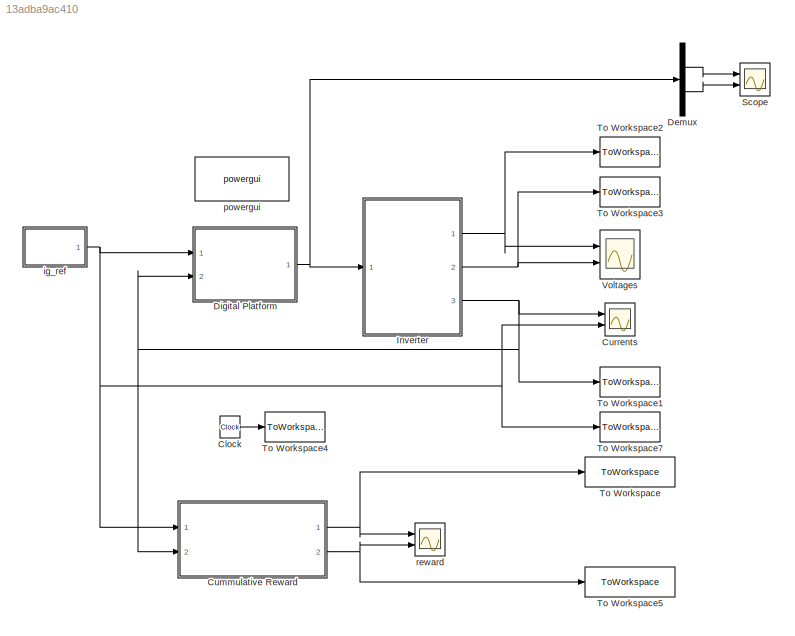
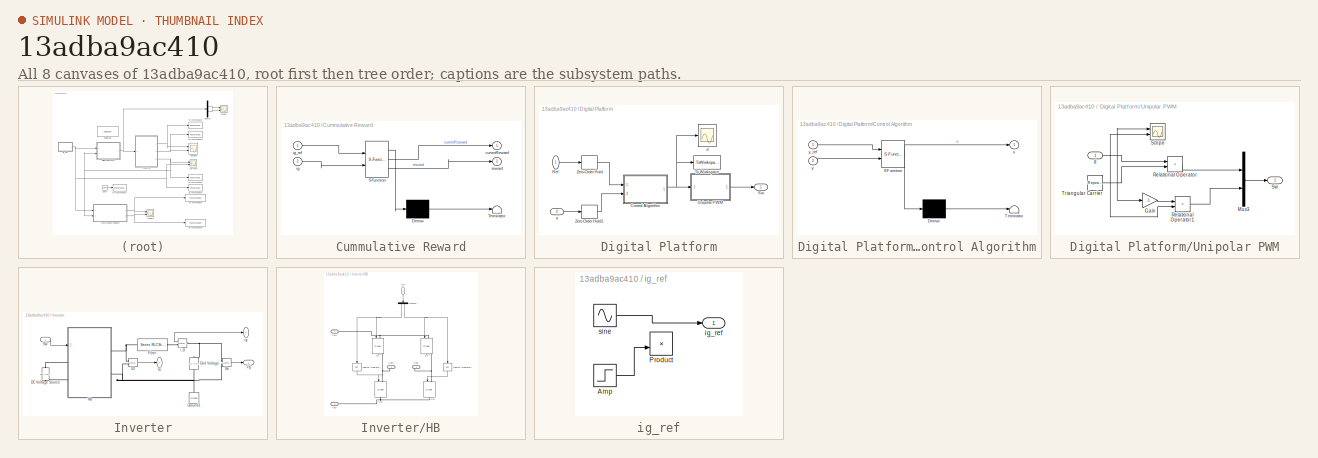
[diagram: thumbnail index - all 8 canvases of the model, root first then tree order]
MODEL slx_13adba9ac410
KIND model
CONFIG AbsTol = auto
CONFIG EnableMultiTasking = on
CONFIG FixedStep = auto
CONFIG MaxStep = auto
CONFIG MinStep = auto
CONFIG RelTol = 1e-3
CONFIG SampleTimeConstraint = Unconstrained
CONFIG SolverName = ode23t
CONFIG StartTime = 0.0
CONFIG StopTime = Tsim
BLOCK [Clock] Clock
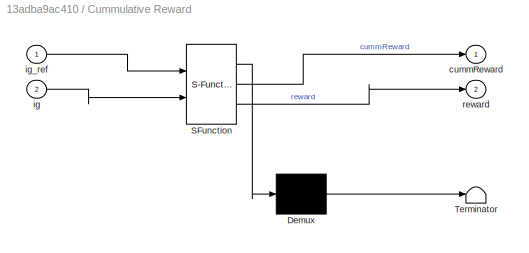
BLOCK [SubSystem] Cummulative Reward
  ErrorFcn = Stateflow.Translate.translate
  PermitHierarchicalResolution = ExplicitOnly
  Ports = [2, 2]
  RequestExecContextInheritance = off
  SFBlockType = MATLAB Function
  SystemSampleTime = Ts
  TreatAsAtomicUnit = on
BLOCK [Demux] Cummulative Reward/ Demux 
  Outputs = 1
  Ports = [1, 1]
BLOCK [S-Function] Cummulative Reward/ SFunction 
  EnableBusSupport = on
  FunctionName = sf_sfun
  PortCounts = [2 3]
  Ports = [2, 3]
  SFcnIsStateOwnerBlock = off
  SFunctionDeploymentMode = off
  Tag = Stateflow S-Function 1
BLOCK [Terminator] Cummulative Reward/ Terminator 
BLOCK [Outport] Cummulative Reward/cummReward
BLOCK [Inport] Cummulative Reward/ig
  Port = 2
BLOCK [Inport] Cummulative Reward/ig_ref
BLOCK [Outport] Cummulative Reward/reward
  Port = 2
BLOCK [Scope] Currents
  Floating = off
  NumInputPorts = 2
  Ports = [2]
  ScopeSpecificationString = Simulink.scopes.TimeScopeBlockCfg('CurrentConfiguration', extmgr.ConfigurationSet(extmgr.Configuration('Core','General UI',true),extmgr.Configuration('Core','Source UI',true),extmgr.Configuration('Sources','WiredSimulink',true,'DataLoggingVariableName','ScopeData1'),extmgr.Configuration('Visuals','Time Domain',true,'SerializedDisplays',{struct('MinYLimReal','-20.0269','MaxYLimReal','19.02381','YLa...<+1409ch>
BLOCK [Demux] Demux
  Outputs = 2
  Ports = [1, 2]
BLOCK [SubSystem] Digital Platform
  Ports = [2, 1]
  RequestExecContextInheritance = off
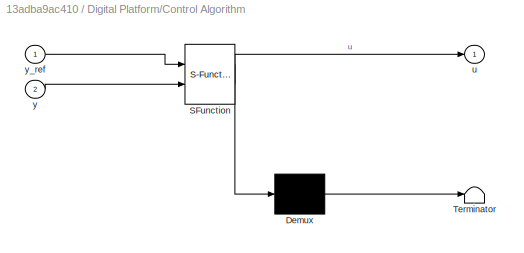
BLOCK [SubSystem] Digital Platform/Control Algorithm
  ErrorFcn = Stateflow.Translate.translate
  PermitHierarchicalResolution = ExplicitOnly
  Ports = [2, 1]
  RequestExecContextInheritance = off
  SFBlockType = MATLAB Function
  TreatAsAtomicUnit = on
BLOCK [Demux] Digital Platform/Control Algorithm/ Demux 
  Outputs = 1
  Ports = [1, 1]
BLOCK [S-Function] Digital Platform/Control Algorithm/ SFunction 
  EnableBusSupport = on
  FunctionName = sf_sfun
  Parameters = Ka,Kb
  PortCounts = [2 2]
  Ports = [2, 2]
  SFcnIsStateOwnerBlock = off
  SFunctionDeploymentMode = off
  Tag = Stateflow S-Function 2
BLOCK [Terminator] Digital Platform/Control Algorithm/ Terminator 
BLOCK [Outport] Digital Platform/Control Algorithm/u
  VectorParamsAs1DForOutWhenUnconnected = off
BLOCK [Inport] Digital Platform/Control Algorithm/y
  Port = 2
BLOCK [Inport] Digital Platform/Control Algorithm/y_ref
BLOCK [Inport] Digital Platform/Ref
BLOCK [Outport] Digital Platform/Sw
  VectorParamsAs1DForOutWhenUnconnected = off
BLOCK [ToWorkspace] Digital Platform/To Workspace
  FixptAsFi = on
  MaxDataPoints = inf
  Ports = [1]
  SampleTime = Ts
  VariableName = d
BLOCK [SubSystem] Digital Platform/Unipolar PWM
  Ports = [1, 1]
  RequestExecContextInheritance = off
BLOCK [Gain] Digital Platform/Unipolar PWM/Gain
  Gain = -1
BLOCK [Mux] Digital Platform/Unipolar PWM/Mux3
  DisplayOption = bar
  Inputs = 2
  Ports = [2, 1]
BLOCK [RelationalOperator] Digital Platform/Unipolar PWM/Relational Operator
  Operator = >
  OutDataTypeStr = boolean
  Ports = [2, 1]
  RndMeth = Simplest
BLOCK [RelationalOperator] Digital Platform/Unipolar PWM/Relational Operator1
  Operator = >
  OutDataTypeStr = boolean
  Ports = [2, 1]
  RndMeth = Simplest
BLOCK [Scope] Digital Platform/Unipolar PWM/Scope
  Floating = off
  NumInputPorts = 2
  Ports = [2]
  ScopeSpecificationString = Simulink.scopes.TimeScopeBlockCfg('CurrentConfiguration', extmgr.ConfigurationSet(extmgr.Configuration('Core','General UI',true),extmgr.Configuration('Core','Source UI',true),extmgr.Configuration('Sources','WiredSimulink',true,'DataLoggingVariableName','ScopeData1'),extmgr.Configuration('Visuals','Time Domain',true,'SerializedDisplays',{struct('MinYLimReal','-0.13234','MaxYLimReal','1.09609','YLab...<+1429ch>
BLOCK [Outport] Digital Platform/Unipolar PWM/Sw
  VectorParamsAs1DForOutWhenUnconnected = off
BLOCK [Reference] Digital Platform/Unipolar PWM/Triangular Carrier  REF=simulink/Sources/Repeating
Sequence
  Ports = [0, 1]
  SourceBlock = simulink/Sources/Repeating\nSequence
  SourceProductBaseCode = SL
  SourceType = Repeating table
BLOCK [Inport] Digital Platform/Unipolar PWM/d
BLOCK [ZeroOrderHold] Digital Platform/Zero-Order Hold
  SampleTime = Ts
BLOCK [ZeroOrderHold] Digital Platform/Zero-Order Hold1
  SampleTime = Ts
BLOCK [Scope] Digital Platform/d
  Floating = off
  NumInputPorts = 1
  Ports = [1]
  ScopeSpecificationString = Simulink.scopes.TimeScopeBlockCfg('CurrentConfiguration', extmgr.ConfigurationSet(extmgr.Configuration('Core','General UI',true),extmgr.Configuration('Core','Source UI',true),extmgr.Configuration('Sources','WiredSimulink',true,'DataLogging',true,'DataLoggingVariableName','Voltages1'),extmgr.Configuration('Visuals','Time Domain',true,'SerializedDisplays',{struct('MinYLimReal','-16.00118','MaxYLimRe...<+1515ch>
BLOCK [Inport] Digital Platform/y
  NameLocation = top
  Port = 2
BLOCK [SubSystem] Inverter
  Ports = [1, 3]
  RequestExecContextInheritance = off
BLOCK [Reference] Inverter/DC Voltage Source  REF=spsDCVoltageSourceLib/DC Voltage Source
  NameLocation = left
  Ports = [0, 0, 0, 0, 0, 1, 1]
  SourceBlock = spsDCVoltageSourceLib/DC Voltage Source
  SourceProductBaseCode = PS
  SourceType = DC Voltage Source
BLOCK [Reference] Inverter/Filter  REF=spsSeriesRLCBranchLib/Series RLC Branch
  Ports = [0, 0, 0, 0, 0, 1, 1]
  SourceBlock = spsSeriesRLCBranchLib/Series RLC Branch
  SourceProductBaseCode = PS
  SourceType = Series RLC Branch
BLOCK [Reference] Inverter/Grid Voltage  REF=spsACVoltageSourceLib/AC Voltage Source
  NameLocation = right
  Ports = [0, 0, 0, 0, 0, 1, 1]
  SourceBlock = spsACVoltageSourceLib/AC Voltage Source
  SourceProductBaseCode = PS
  SourceType = AC Voltage Source
BLOCK [Reference] Inverter/Ground1  REF=spsGroundLib/Ground
  NameLocation = right
  Ports = [0, 0, 0, 0, 0, 1]
  SourceBlock = spsGroundLib/Ground
  SourceProductBaseCode = PS
  SourceType = Ground
BLOCK [SubSystem] Inverter/HB
  Ports = [1, 0, 0, 0, 0, 2, 2]
  RequestExecContextInheritance = off
BLOCK [Demux] Inverter/HB/Demux
  NameLocation = left
  Outputs = 2
  Ports = [1, 2]
BLOCK [Logic] Inverter/HB/Logical Operator
  AllPortsSameDT = off
  NameLocation = left
  Operator = NOT
  OutDataTypeStr = boolean
  Ports = [1, 1]
BLOCK [Logic] Inverter/HB/Logical Operator1
  AllPortsSameDT = off
  NameLocation = left
  Operator = NOT
  OutDataTypeStr = boolean
  Ports = [1, 1]
BLOCK [Reference] Inverter/HB/S1  REF=spsIGBTDiodeLib/IGBT//Diode
  NameLocation = left
  Ports = [1, 0, 0, 0, 0, 1, 1]
  SourceBlock = spsIGBTDiodeLib/IGBT//Diode
  SourceProductBaseCode = PS
  SourceType = IGBT/Diode
BLOCK [Reference] Inverter/HB/S1n  REF=spsIGBTDiodeLib/IGBT//Diode
  NameLocation = left
  Ports = [1, 0, 0, 0, 0, 1, 1]
  SourceBlock = spsIGBTDiodeLib/IGBT//Diode
  SourceProductBaseCode = PS
  SourceType = IGBT/Diode
BLOCK [Reference] Inverter/HB/S2  REF=spsIGBTDiodeLib/IGBT//Diode
  NameLocation = left
  Ports = [1, 0, 0, 0, 0, 1, 1]
  SourceBlock = spsIGBTDiodeLib/IGBT//Diode
  SourceProductBaseCode = PS
  SourceType = IGBT/Diode
BLOCK [Reference] Inverter/HB/S2n  REF=spsIGBTDiodeLib/IGBT//Diode
  NameLocation = left
  Ports = [1, 0, 0, 0, 0, 1, 1]
  SourceBlock = spsIGBTDiodeLib/IGBT//Diode
  SourceProductBaseCode = PS
  SourceType = IGBT/Diode
BLOCK [Inport] Inverter/HB/Sw
  NameLocation = left
BLOCK [PMIOPort] Inverter/HB/Vdc+
  NameLocation = top
  Side = Left
BLOCK [PMIOPort] Inverter/HB/Vdc--
  Port = 2
  Side = Left
BLOCK [PMIOPort] Inverter/HB/Vout+
  NameLocation = top
  Port = 3
  Side = Right
BLOCK [PMIOPort] Inverter/HB/Vout-
  NameLocation = top
  Port = 4
  Side = Right
BLOCK [Inport] Inverter/Sw
BLOCK [Reference] Inverter/V2  REF=spsVoltageMeasurementLib/Voltage Measurement
  AttributesFormatString = \n
  Ports = [0, 1, 0, 0, 0, 2]
  SourceBlock = spsVoltageMeasurementLib/Voltage Measurement
  SourceProductBaseCode = PS
  SourceType = Voltage Measurement
  Tag = PoWeRsYsTeMmEaSuReMeNt
BLOCK [Reference] Inverter/Vb  REF=spsVoltageMeasurementLib/Voltage Measurement
  AttributesFormatString = \n
  Ports = [0, 1, 0, 0, 0, 2]
  SourceBlock = spsVoltageMeasurementLib/Voltage Measurement
  SourceProductBaseCode = PS
  SourceType = Voltage Measurement
  Tag = PoWeRsYsTeMmEaSuReMeNt
BLOCK [Outport] Inverter/Vi
  Port = 2
  VectorParamsAs1DForOutWhenUnconnected = off
BLOCK [Reference] Inverter/i_g  REF=spsCurrentMeasurementLib/Current Measurement
  Ports = [0, 1, 0, 0, 0, 1, 1]
  SourceBlock = spsCurrentMeasurementLib/Current Measurement
  SourceProductBaseCode = PS
  SourceType = Current Measurement
  UserDataPersistent = on
BLOCK [Outport] Inverter/ig
  Port = 3
  VectorParamsAs1DForOutWhenUnconnected = off
BLOCK [Outport] Inverter/vg
  VectorParamsAs1DForOutWhenUnconnected = off
BLOCK [Scope] Scope
  Floating = off
  NumInputPorts = 2
  Ports = [2]
  ScopeSpecificationString = Simulink.scopes.TimeScopeBlockCfg('CurrentConfiguration', extmgr.ConfigurationSet(extmgr.Configuration('Core','General UI',true),extmgr.Configuration('Core','Source UI',true),extmgr.Configuration('Sources','WiredSimulink',true,'DataLoggingVariableName','ScopeData2'),extmgr.Configuration('Visuals','Time Domain',true,'SerializedDisplays',{struct('MinYLimReal','-0.125','MaxYLimReal','1.125','YLabelRe...<+2164ch>
BLOCK [ToWorkspace] To Workspace
  FixptAsFi = on
  MaxDataPoints = inf
  Ports = [1]
  SampleTime = Ts
  VariableName = sumRewards
BLOCK [ToWorkspace] To Workspace1
  FixptAsFi = on
  MaxDataPoints = inf
  Ports = [1]
  SampleTime = Ts
  VariableName = ig
BLOCK [ToWorkspace] To Workspace2
  FixptAsFi = on
  MaxDataPoints = inf
  Ports = [1]
  SampleTime = Ts
  VariableName = vg
BLOCK [ToWorkspace] To Workspace3
  FixptAsFi = on
  MaxDataPoints = inf
  Ports = [1]
  SampleTime = Ts
  VariableName = vi
BLOCK [ToWorkspace] To Workspace4
  FixptAsFi = on
  MaxDataPoints = inf
  Ports = [1]
  SampleTime = Ts
  VariableName = time
BLOCK [ToWorkspace] To Workspace5
  FixptAsFi = on
  MaxDataPoints = inf
  Ports = [1]
  SampleTime = Ts
  VariableName = rewards
BLOCK [ToWorkspace] To Workspace7
  FixptAsFi = on
  MaxDataPoints = inf
  Ports = [1]
  SampleTime = Ts
  VariableName = ig_ref
BLOCK [Scope] Voltages
  Floating = off
  NumInputPorts = 2
  Ports = [2]
  ScopeSpecificationString = Simulink.scopes.TimeScopeBlockCfg('CurrentConfiguration', extmgr.ConfigurationSet(extmgr.Configuration('Core','General UI',true),extmgr.Configuration('Core','Source UI',true),extmgr.Configuration('Sources','WiredSimulink',true,'DataLogging',true,'DataLoggingVariableName','Voltages'),extmgr.Configuration('Visuals','Time Domain',true,'SerializedDisplays',{struct('MinYLimReal','-500.0081','MaxYLimRea...<+2063ch>
BLOCK [SubSystem] ig_ref
  Ports = [0, 1]
  RequestExecContextInheritance = off
BLOCK [Step] ig_ref/Amp
  After = -Iref
  Before = Iref
  Commented = on
  SampleTime = 0
  Time = 0.055
BLOCK [Product] ig_ref/Product
  Commented = on
  Ports = [2, 1]
BLOCK [Outport] ig_ref/ig_ref
  VectorParamsAs1DForOutWhenUnconnected = off
BLOCK [Sin] ig_ref/sine
  Amplitude = Iref
  Frequency = 2*pi*fo
  Ports = [0, 1]
  SampleTime = 0
BLOCK [Reference] powergui  REF=spspowerguiLib/powergui
  Ports = []
  SourceBlock = spspowerguiLib/powergui
  SourceProductBaseCode = PS
  SourceType = PSB option menu block
BLOCK [Scope] reward
  Floating = off
  NumInputPorts = 2
  Ports = [2]
  ScopeSpecificationString = Simulink.scopes.TimeScopeBlockCfg('CurrentConfiguration', extmgr.ConfigurationSet(extmgr.Configuration('Core','General UI',true),extmgr.Configuration('Core','Source UI',true),extmgr.Configuration('Sources','WiredSimulink',true,'DataLoggingVariableName','ScopeData2'),extmgr.Configuration('Visuals','Time Domain',true,'SerializedDisplays',{struct('MinYLimReal','-200.45652','MaxYLimReal','22.27295','Y...<+2081ch>
LINE Clock:1 -> To Workspace4:1
NET Cummulative Reward:1 -> To Workspace:1, reward:1
NET Cummulative Reward:2 -> To Workspace5:1, reward:2
LINE Demux:1 -> Scope:1
LINE Demux:2 -> Scope:2
NET Digital Platform/Control Algorithm:1 -> Digital Platform/To Workspace:1, Digital Platform/Unipolar PWM:1, Digital Platform/d:1
LINE Digital Platform/Ref:1 -> Digital Platform/Zero-Order Hold:1
LINE Digital Platform/Unipolar PWM/Gain:1 -> Digital Platform/Unipolar PWM/Relational Operator1:1
LINE Digital Platform/Unipolar PWM/Mux3:1 -> Digital Platform/Unipolar PWM/Sw:1
LINE Digital Platform/Unipolar PWM/Relational Operator1:1 -> Digital Platform/Unipolar PWM/Mux3:2
LINE Digital Platform/Unipolar PWM/Relational Operator:1 -> Digital Platform/Unipolar PWM/Mux3:1
NET Digital Platform/Unipolar PWM/Triangular Carrier:1 -> Digital Platform/Unipolar PWM/Relational Operator1:2, Digital Platform/Unipolar PWM/Relational Operator:2, Digital Platform/Unipolar PWM/Scope:2
NET Digital Platform/Unipolar PWM/d:1 -> Digital Platform/Unipolar PWM/Gain:1, Digital Platform/Unipolar PWM/Relational Operator:1, Digital Platform/Unipolar PWM/Scope:1
LINE Digital Platform/Unipolar PWM:1 -> Digital Platform/Sw:1
LINE Digital Platform/Zero-Order Hold1:1 -> Digital Platform/Control Algorithm:2
LINE Digital Platform/Zero-Order Hold:1 -> Digital Platform/Control Algorithm:1
LINE Digital Platform/y:1 -> Digital Platform/Zero-Order Hold1:1
NET Digital Platform:1 -> Demux:1, Inverter:1
NET Inverter/HB/Demux:1 -> Inverter/HB/Logical Operator:1, Inverter/HB/S1:1
NET Inverter/HB/Demux:2 -> Inverter/HB/Logical Operator1:1, Inverter/HB/S2:1
LINE Inverter/HB/Logical Operator1:1 -> Inverter/HB/S2n:1
LINE Inverter/HB/Logical Operator:1 -> Inverter/HB/S1n:1
LINE Inverter/HB/Sw:1 -> Inverter/HB/Demux:1
LINE Inverter/Sw:1 -> Inverter/HB:1
LINE Inverter/V2:1 -> Inverter/Vi:1
LINE Inverter/Vb:1 -> Inverter/vg:1
LINE Inverter/i_g:1 -> Inverter/ig:1
NET Inverter:1 -> To Workspace2:1, Voltages:1
NET Inverter:2 -> To Workspace3:1, Voltages:2
NET Inverter:3 -> Cummulative Reward:2, Currents:1, Digital Platform:2, To Workspace1:1
LINE ig_ref/Amp:1 -> ig_ref/Product:2
LINE ig_ref/sine:1 -> ig_ref/ig_ref:1
NET ig_ref:1 -> Cummulative Reward:1, Currents:2, Digital Platform:1, To Workspace7:1
PLINE Inverter/DC Voltage Source:LConn1 -- Inverter/HB:LConn2
PLINE Inverter/DC Voltage Source:RConn1 -- Inverter/HB:LConn1
PNET net1: Inverter/Filter:LConn1 -- Inverter/HB:RConn1 -- Inverter/V2:LConn1
PLINE Inverter/Filter:RConn1 -- Inverter/i_g:RConn1
PNET net2: Inverter/Grid Voltage:LConn1 -- Inverter/Ground1:LConn1 -- Inverter/HB:RConn2 -- Inverter/V2:LConn2 -- Inverter/Vb:LConn2
PNET net3: Inverter/Grid Voltage:RConn1 -- Inverter/Vb:LConn1 -- Inverter/i_g:LConn1
PNET net4: Inverter/HB/S1:LConn1 -- Inverter/HB/S2:LConn1 -- Inverter/HB/Vdc+:RConn1
PNET net5: Inverter/HB/S1:RConn1 -- Inverter/HB/S1n:LConn1 -- Inverter/HB/Vout+:RConn1
PNET net6: Inverter/HB/S1n:RConn1 -- Inverter/HB/S2n:RConn1 -- Inverter/HB/Vdc--:RConn1
PNET net7: Inverter/HB/S2:RConn1 -- Inverter/HB/S2n:LConn1 -- Inverter/HB/Vout-:RConn1
note: NET lines group one-source signal fan-out (src -> all destinations, sorted); 1:1 wires keep LINE; PNET lines group multi-terminal physical nets as a canonical sorted terminal list (undirected conserving connections); 2-terminal nets keep the pairwise PLINE form
CHART Cummulative Reward states=1 transitions=1
  STATE_LABEL 'eML_blk_kernel()'
  STATE_LABEL 'SCRIPT:\nfunction [cummReward, reward]= calcReward(ig_ref, ig)\n\n    persistent sumReward;\n    if isempty(sumReward)\n        sumReward = 0;\n    end\n    \n    % reward on this time step\n    reward = abs(ig_ref-ig)*-0.1;\n    \n    % cummulative reward\n    sumReward = sumReward+reward;\n    \n    % output to view on scope\n    cummReward = sumReward;\nend\n'
CHART Digital
Platform/Control Algorithm states=1 transitions=1
  STATE_LABEL 'eML_blk_kernel()'
  STATE_LABEL 'SCRIPT:\nfunction u = DCtrl(y_ref,y,Ka, Kb)  \n% You can add more parameters to be read from the workspace like Ka, Kb\n% For extra parameters, just be sure to define them as parameters in \n% "Edit Data", next to "Build Model.\n%\n% Check the screenshot in "Adding_Parameters_to_Matlab_Function.PDF"\n%% Variables\n\n%%Memories \n%e(k-1)\npersistent e_k_1   \nif isempty(e_k_1)\n    e_k_1=0;        %Initial valu...<+433ch>'
CHART  states=0 transitions=0
CHART  states=0 transitions=0
